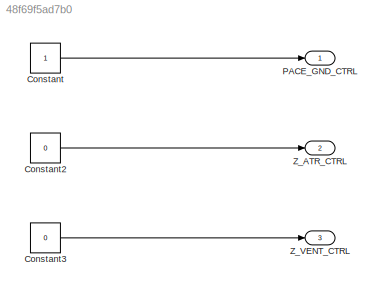
MODEL slx_48f69f5ad7b0
KIND model
CONFIG AbsTol = auto
CONFIG EnableMultiTasking = on
CONFIG FixedStep = 1e-3
CONFIG MaxStep = auto
CONFIG MinStep = auto
CONFIG RelTol = 1e-3
CONFIG SampleTimeConstraint = Unconstrained
CONFIG Solver = FixedStepAuto
CONFIG SolverName = FixedStepAuto
CONFIG StartTime = 0.0
CONFIG StopTime = 10.0
BLOCK [Constant] Constant
BLOCK [Constant] Constant2
  Value = 0
BLOCK [Constant] Constant3
  Value = 0
BLOCK [Outport] PACE_GND_CTRL
BLOCK [Outport] Z_ATR_CTRL
  Port = 2
BLOCK [Outport] Z_VENT_CTRL
  Port = 3
LINE Constant2:1 -> Z_ATR_CTRL:1
LINE Constant3:1 -> Z_VENT_CTRL:1
LINE Constant:1 -> PACE_GND_CTRL:1
